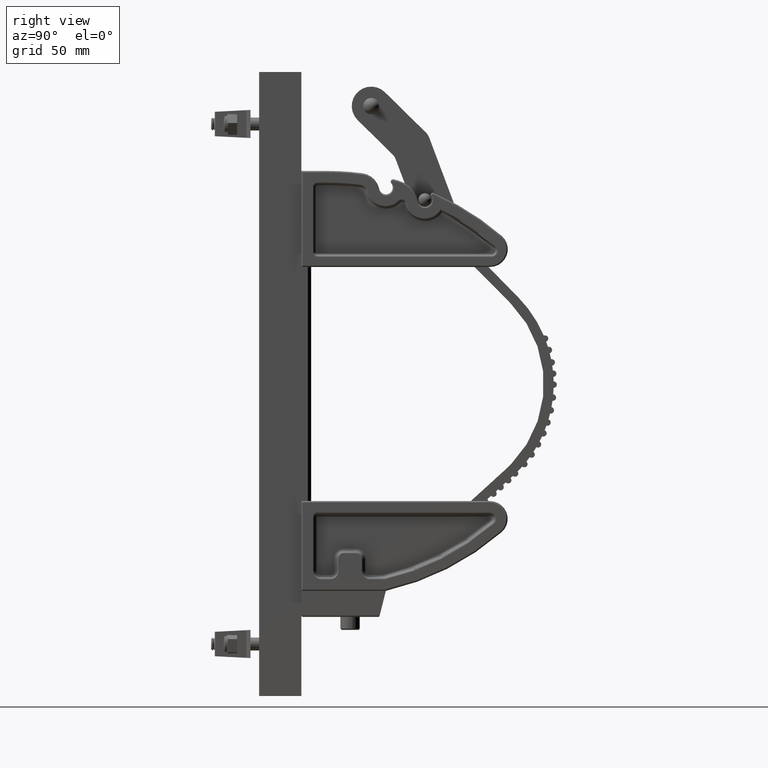
[diagram: clean part render]
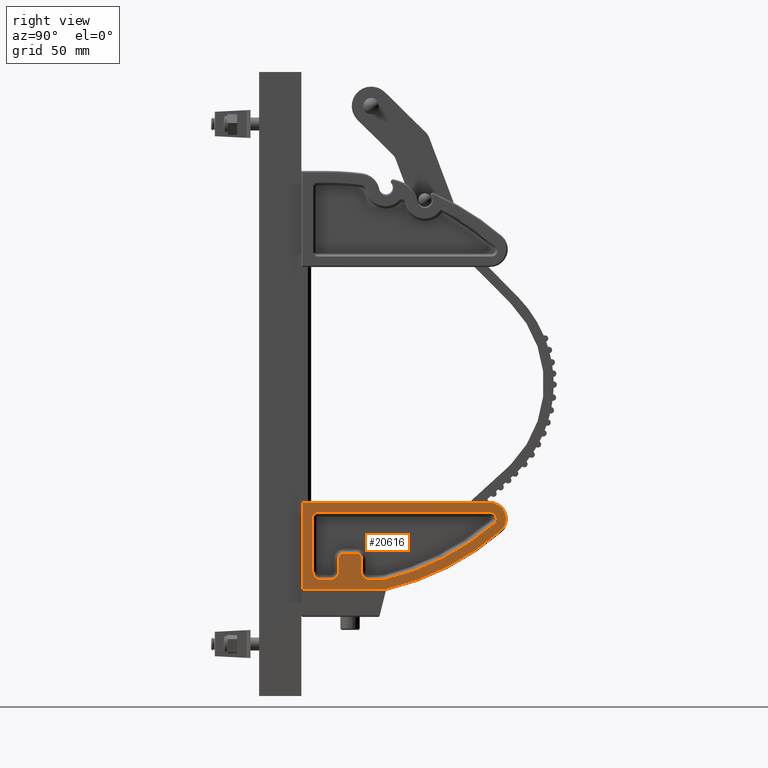
[diagram: same view with one face highlighted and labeled with its STEP entity id]
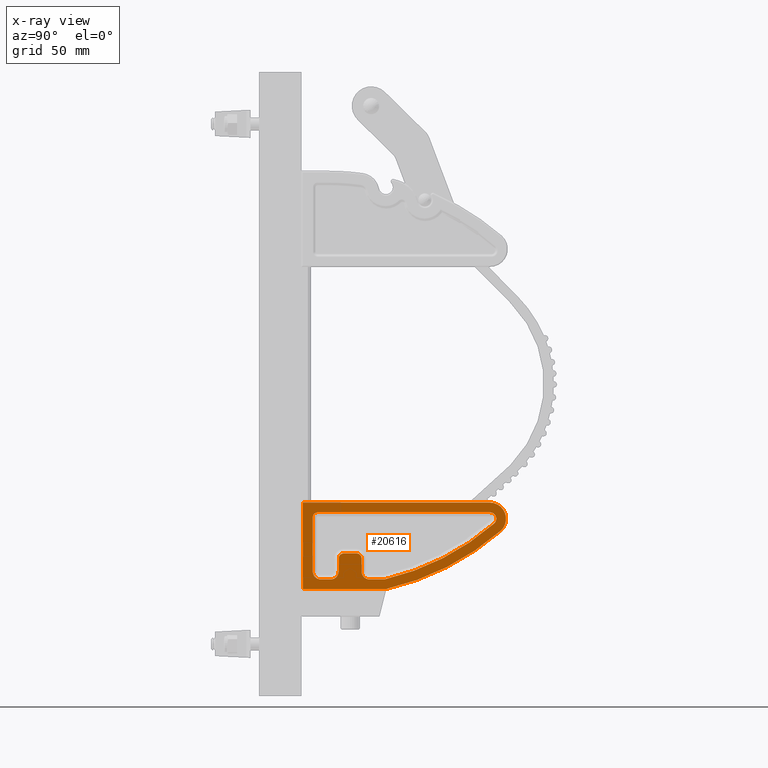
[diagram: x-ray of the same camera — body ghosted, the highlighted face saturated]
A machine part, right view. The second image highlights one B-rep face of the part: STEP entity #20616.
The next image is the same camera in x-ray: the body ghosted, the highlighted face saturated — about 0% of this face is hidden behind the body in this view.
In plain terms, the highlighted planar face has unit normal (-1, -0, -0).
Its self-contained STEP definition (entity closure, byte-faithful):
#386 = CIRCLE ( 'NONE', #13642, 0.09375000000000056900 ) ;
#466 = ORIENTED_EDGE ( 'NONE', *, *, #18978, .T. ) ;
#662 = LINE ( 'NONE', #34475, #7328 ) ;
#841 = ORIENTED_EDGE ( 'NONE', *, *, #21004, .T. ) ;
#1006 = ORIENTED_EDGE ( 'NONE', *, *, #28541, .T. ) ;
#1170 = DIRECTION ( 'NONE',  ( 1.000000000000000000, 5.558892818463635400E-016, 1.082467449009524100E-015 ) ) ;
#1256 = ORIENTED_EDGE ( 'NONE', *, *, #8213, .T. ) ;
#1379 = CARTESIAN_POINT ( 'NONE',  ( -1.353000000000002600, 0.5624999999999997800, -0.9375000000000017800 ) ) ;
#1691 = CARTESIAN_POINT ( 'NONE',  ( -1.509250000000002400, 0.3749999999999996700, -0.9375000000000017800 ) ) ;
#1766 = ORIENTED_EDGE ( 'NONE', *, *, #21804, .T. ) ;
#1973 = CIRCLE ( 'NONE', #22307, 0.1234500000000014200 ) ;
#2588 = CIRCLE ( 'NONE', #20150, 0.1562500000000008300 ) ;
#3262 = CIRCLE ( 'NONE', #28442, 0.1562500000000008300 ) ;
#3323 = DIRECTION ( 'NONE',  ( -5.558892818463669900E-016, -1.000000000000000000, 3.962698892778895900E-016 ) ) ;
#3510 = CARTESIAN_POINT ( 'NONE',  ( 3.250000000000014700, 0.5000000000000010000, -0.9374999999999982200 ) ) ;
#3532 = ORIENTED_EDGE ( 'NONE', *, *, #29001, .T. ) ;
#3639 = CARTESIAN_POINT ( 'NONE',  ( -0.3125000000000005600, 0.2187499999999990000, -0.9375000000000000000 ) ) ;
#3656 = DIRECTION ( 'NONE',  ( 3.877755591593341800E-016, 1.000000000000000000, -3.962698892778898900E-016 ) ) ;
#3761 = VECTOR ( 'NONE', #10415, 39.37007874015748100 ) ;
#4066 = FACE_BOUND ( 'NONE', #19161, .T. ) ;
#4220 = DIRECTION ( 'NONE',  ( 1.000000000000000000, 4.370956789862798000E-016, 8.741913579725596000E-016 ) ) ;
#4437 = EDGE_CURVE ( 'NONE', #19692, #28386, #20065, .T. ) ;
#5281 = VERTEX_POINT ( 'NONE', #24401 ) ;
#5531 = LINE ( 'NONE', #36047, #12193 ) ;
#5656 = EDGE_CURVE ( 'NONE', #5281, #17746, #31346, .T. ) ;
#6410 = DIRECTION ( 'NONE',  ( 1.000000000000000000, 5.520474612432901800E-016, 1.077165778035688300E-015 ) ) ;
#6486 = CIRCLE ( 'NONE', #35777, 0.09375000000000061100 ) ;
#6526 = DIRECTION ( 'NONE',  ( 1.000000000000000000, -2.645840463805250400E-016, 1.082467449009524300E-015 ) ) ;
#6914 = ORIENTED_EDGE ( 'NONE', *, *, #34420, .T. ) ;
#6954 = VERTEX_POINT ( 'NONE', #9108 ) ;
#7195 = EDGE_LOOP ( 'NONE', ( #1766, #6914, #15899, #12923, #1256 ) ) ;
#7295 = VERTEX_POINT ( 'NONE', #18900 ) ;
#7328 = VECTOR ( 'NONE', #17698, 39.37007874015748100 ) ;
#7527 = CARTESIAN_POINT ( 'NONE',  ( -0.03124999999999983700, 0.03124999999999888300, -0.9375000000000003300 ) ) ;
#7546 = VERTEX_POINT ( 'NONE', #20020 ) ;
#7578 = CARTESIAN_POINT ( 'NONE',  ( -1.353000000000002600, 0.7187499999999995600, -0.9375000000000017800 ) ) ;
#7833 = EDGE_CURVE ( 'NONE', #14534, #19692, #18509, .T. ) ;
#8120 = CARTESIAN_POINT ( 'NONE',  ( -1.509250000000002400, 0.5624999999999997800, -0.9375000000000017800 ) ) ;
#8144 = CARTESIAN_POINT ( 'NONE',  ( -0.2187499999999988600, 3.625131516786316100, -0.9375000000000017800 ) ) ;
#8213 = EDGE_CURVE ( 'NONE', #22534, #7295, #29407, .T. ) ;
#8315 = CARTESIAN_POINT ( 'NONE',  ( -1.009250000000000600, 0.8124999999999998900, -0.9375000000000017800 ) ) ;
#8649 = VERTEX_POINT ( 'NONE', #8120 ) ;
#8765 = CARTESIAN_POINT ( 'NONE',  ( -1.102999999999999800, 0.8124999999999998900, -0.9375000000000017800 ) ) ;
#8840 = AXIS2_PLACEMENT_3D ( 'NONE', #26578, #18232, #1170 ) ;
#9108 = CARTESIAN_POINT ( 'NONE',  ( -1.102999999999999800, 0.7187499999999997800, -0.9375000000000017800 ) ) ;
#9358 = CARTESIAN_POINT ( 'NONE',  ( -0.3421999999999999500, 3.625131516786316100, -0.9375000000000017800 ) ) ;
#9578 = DIRECTION ( 'NONE',  ( 1.366270711611484000E-015, -1.000000000000000000, 3.962698892778917100E-016 ) ) ;
#9683 = CARTESIAN_POINT ( 'NONE',  ( -0.3125000000000005600, 0.2187499999999990000, -0.9375000000000000000 ) ) ;
#9707 = VECTOR ( 'NONE', #19335, 39.37007874015748100 ) ;
#9758 = VERTEX_POINT ( 'NONE', #17565 ) ;
#9864 = VECTOR ( 'NONE', #3323, 39.37007874015748100 ) ;
#9931 = CARTESIAN_POINT ( 'NONE',  ( -1.102999999999999800, 1.156250000000000200, -0.9375000000000017800 ) ) ;
#10002 = EDGE_CURVE ( 'NONE', #29740, #12417, #5531, .T. ) ;
#10338 = DIRECTION ( 'NONE',  ( 1.082467449009530600E-015, -3.962698892778896400E-016, 1.000000000000000000 ) ) ;
#10415 = DIRECTION ( 'NONE',  ( -1.000000000000000000, -6.783499172286005700E-016, -1.082467449009523900E-015 ) ) ;
#10419 = VERTEX_POINT ( 'NONE', #16344 ) ;
#10739 = FACE_OUTER_BOUND ( 'NONE', #7195, .T. ) ;
#10752 = LINE ( 'NONE', #34307, #9864 ) ;
#11378 = AXIS2_PLACEMENT_3D ( 'NONE', #29827, #12997, #32656 ) ;
#11465 = LINE ( 'NONE', #31470, #32149 ) ;
#11489 = EDGE_CURVE ( 'NONE', #6954, #7546, #31312, .T. ) ;
#11568 = LINE ( 'NONE', #20696, #34020 ) ;
#11604 = DIRECTION ( 'NONE',  ( 1.000000000000000000, 0.0000000000000000000, 1.456985596620930900E-015 ) ) ;
#12185 = DIRECTION ( 'NONE',  ( 1.000000000000000000, 0.0000000000000000000, 8.785489608182168200E-016 ) ) ;
#12193 = VECTOR ( 'NONE', #13170, 39.37007874015748100 ) ;
#12404 = CARTESIAN_POINT ( 'NONE',  ( -0.4353370570517935400, 3.706158617831159000, -0.9375000000000017800 ) ) ;
#12417 = VERTEX_POINT ( 'NONE', #9931 ) ;
#12891 = CARTESIAN_POINT ( 'NONE',  ( -0.3125000000000000000, 0.3124999999999989500, -0.9375000000000000000 ) ) ;
#12923 = ORIENTED_EDGE ( 'NONE', *, *, #18025, .T. ) ;
#12997 = DIRECTION ( 'NONE',  ( 1.082467449009530600E-015, -3.962698892778896400E-016, 1.000000000000000000 ) ) ;
#13065 = CARTESIAN_POINT ( 'NONE',  ( -1.102999999999999800, 1.062500000000000200, -0.9375000000000017800 ) ) ;
#13170 = DIRECTION ( 'NONE',  ( 1.000000000000000000, 5.558892818463634400E-016, 1.082467449009523900E-015 ) ) ;
#13362 = VECTOR ( 'NONE', #9578, 39.37007874015748100 ) ;
#13558 = LINE ( 'NONE', #8144, #21111 ) ;
#13642 = AXIS2_PLACEMENT_3D ( 'NONE', #12891, #32553, #15754 ) ;
#13705 = EDGE_CURVE ( 'NONE', #20768, #21177, #18903, .T. ) ;
#13785 = DIRECTION ( 'NONE',  ( 1.082467449009530600E-015, -3.962698892778896400E-016, 1.000000000000000000 ) ) ;
#13994 = AXIS2_PLACEMENT_3D ( 'NONE', #3510, #23398, #6410 ) ;
#14534 = VERTEX_POINT ( 'NONE', #12404 ) ;
#15347 = PLANE ( 'NONE',  #8840 ) ;
#15547 = ORIENTED_EDGE ( 'NONE', *, *, #11489, .T. ) ;
#15722 = DIRECTION ( 'NONE',  ( 1.082467449009530600E-015, -3.962698892778896400E-016, 1.000000000000000000 ) ) ;
#15754 = DIRECTION ( 'NONE',  ( 1.000000000000000000, 7.284927983104657500E-016, 1.456985596620931500E-015 ) ) ;
#15899 = ORIENTED_EDGE ( 'NONE', *, *, #13705, .T. ) ;
#15937 = DIRECTION ( 'NONE',  ( 1.000000000000000000, 0.0000000000000000000, 1.456985596620930900E-015 ) ) ;
#16344 = CARTESIAN_POINT ( 'NONE',  ( -0.2187499999999988600, 3.625131516786316100, -0.9375000000000017800 ) ) ;
#17316 = VECTOR ( 'NONE', #6526, 39.37007874015748100 ) ;
#17329 = EDGE_CURVE ( 'NONE', #7546, #8649, #22723, .T. ) ;
#17565 = CARTESIAN_POINT ( 'NONE',  ( -1.009249999999999500, 1.062500000000000200, -0.9375000000000017800 ) ) ;
#17698 = DIRECTION ( 'NONE',  ( -5.558892818463669900E-016, -1.000000000000000000, 3.962698892778895900E-016 ) ) ;
#17746 = VERTEX_POINT ( 'NONE', #9683 ) ;
#18025 = EDGE_CURVE ( 'NONE', #21177, #22534, #11568, .T. ) ;
#18232 = DIRECTION ( 'NONE',  ( -1.082467449009523900E-015, -3.962698892778908300E-016, 1.000000000000000000 ) ) ;
#18509 = CIRCLE ( 'NONE', #11378, 4.884788870235074600 ) ;
#18900 = CARTESIAN_POINT ( 'NONE',  ( -0.5767967427319152800, 3.829225296210323900, -0.9375000000000035500 ) ) ;
#18903 = LINE ( 'NONE', #27328, #3761 ) ;
#18978 = EDGE_CURVE ( 'NONE', #28386, #29740, #3262, .T. ) ;
#19161 = EDGE_LOOP ( 'NONE', ( #26622, #25334, #466, #28991, #20791, #3532, #841, #15547, #19540, #30086, #30941, #28616, #1006, #20484, #33661 ) ) ;
#19335 = DIRECTION ( 'NONE',  ( -1.000000000000000000, -5.558892818463634400E-016, -1.082467449009523900E-015 ) ) ;
#19540 = ORIENTED_EDGE ( 'NONE', *, *, #17329, .T. ) ;
#19692 = VERTEX_POINT ( 'NONE', #32713 ) ;
#20020 = CARTESIAN_POINT ( 'NONE',  ( -1.353000000000002600, 0.7187499999999995600, -0.9375000000000017800 ) ) ;
#20065 = LINE ( 'NONE', #29293, #13362 ) ;
#20150 = AXIS2_PLACEMENT_3D ( 'NONE', #32520, #15722, #35376 ) ;
#20437 = CARTESIAN_POINT ( 'NONE',  ( -1.353000000000000600, 1.156250000000000000, -0.9375000000000017800 ) ) ;
#20484 = ORIENTED_EDGE ( 'NONE', *, *, #31857, .T. ) ;
#20616 = ADVANCED_FACE ( 'NONE', ( #4066, #10739 ), #15347, .F. ) ;
#20696 = CARTESIAN_POINT ( 'NONE',  ( -1.696750000000002600, 0.4999999999999996100, -0.9375000000000035500 ) ) ;
#20768 = VERTEX_POINT ( 'NONE', #7527 ) ;
#20791 = ORIENTED_EDGE ( 'NONE', *, *, #31577, .T. ) ;
#21004 = EDGE_CURVE ( 'NONE', #30463, #6954, #29247, .T. ) ;
#21111 = VECTOR ( 'NONE', #25111, 39.37007874015748100 ) ;
#21177 = VERTEX_POINT ( 'NONE', #32236 ) ;
#21253 = DIRECTION ( 'NONE',  ( 1.082467449009530600E-015, -3.962698892778896400E-016, 1.000000000000000000 ) ) ;
#21804 = EDGE_CURVE ( 'NONE', #7295, #24019, #30102, .T. ) ;
#21813 = CARTESIAN_POINT ( 'NONE',  ( -1.696750000000002600, 1.621507387675316100, -0.9375000000000035500 ) ) ;
#22307 = AXIS2_PLACEMENT_3D ( 'NONE', #27232, #10338, #30024 ) ;
#22534 = VERTEX_POINT ( 'NONE', #21813 ) ;
#22723 = CIRCLE ( 'NONE', #32115, 0.1562500000000008300 ) ;
#23398 = DIRECTION ( 'NONE',  ( -1.082467449009530600E-015, 3.962698892778896400E-016, -1.000000000000000000 ) ) ;
#23476 = VERTEX_POINT ( 'NONE', #29385 ) ;
#23909 = EDGE_CURVE ( 'NONE', #35280, #5281, #2588, .T. ) ;
#24019 = VERTEX_POINT ( 'NONE', #32889 ) ;
#24401 = CARTESIAN_POINT ( 'NONE',  ( -1.353000000000002600, 0.2187499999999998100, -0.9375000000000017800 ) ) ;
#25111 = DIRECTION ( 'NONE',  ( 9.476104227022025600E-016, 1.000000000000000000, -3.962698892778893500E-016 ) ) ;
#25334 = ORIENTED_EDGE ( 'NONE', *, *, #4437, .T. ) ;
#26112 = AXIS2_PLACEMENT_3D ( 'NONE', #9358, #29053, #12185 ) ;
#26578 = CARTESIAN_POINT ( 'NONE',  ( 3.250000000000014700, 0.5000000000000010000, -0.9374999999999982200 ) ) ;
#26622 = ORIENTED_EDGE ( 'NONE', *, *, #7833, .T. ) ;
#27232 = CARTESIAN_POINT ( 'NONE',  ( -0.3421999999999999500, 3.625131516786316100, -0.9375000000000017800 ) ) ;
#27328 = CARTESIAN_POINT ( 'NONE',  ( 3.250000000000014700, 0.03125000000000106900, -0.9374999999999964500 ) ) ;
#28386 = VERTEX_POINT ( 'NONE', #34434 ) ;
#28442 = AXIS2_PLACEMENT_3D ( 'NONE', #30624, #13785, #33433 ) ;
#28487 = DIRECTION ( 'NONE',  ( -1.082467449009530600E-015, 3.962698892778896400E-016, -1.000000000000000000 ) ) ;
#28541 = EDGE_CURVE ( 'NONE', #17746, #23476, #386, .T. ) ;
#28616 = ORIENTED_EDGE ( 'NONE', *, *, #5656, .T. ) ;
#28652 = DIRECTION ( 'NONE',  ( -5.558892818463669900E-016, -1.000000000000000000, 3.962698892778895900E-016 ) ) ;
#28991 = ORIENTED_EDGE ( 'NONE', *, *, #10002, .T. ) ;
#29001 = EDGE_CURVE ( 'NONE', #9758, #30463, #11465, .T. ) ;
#29053 = DIRECTION ( 'NONE',  ( -1.082467449009530600E-015, 3.962698892778896400E-016, -1.000000000000000000 ) ) ;
#29247 = CIRCLE ( 'NONE', #35732, 0.09375000000000061100 ) ;
#29293 = CARTESIAN_POINT ( 'NONE',  ( -1.509250000000000200, 1.312499999999997300, -0.9375000000000035500 ) ) ;
#29385 = CARTESIAN_POINT ( 'NONE',  ( -0.2187499999999999400, 0.3124999999999993300, -0.9375000000000000000 ) ) ;
#29407 = CIRCLE ( 'NONE', #13994, 5.072288870235074600 ) ;
#29740 = VERTEX_POINT ( 'NONE', #20437 ) ;
#29827 = CARTESIAN_POINT ( 'NONE',  ( 3.250000000000014700, 0.5000000000000010000, -0.9374999999999982200 ) ) ;
#30024 = DIRECTION ( 'NONE',  ( 1.000000000000000000, 0.0000000000000000000, 1.106459292695112100E-015 ) ) ;
#30086 = ORIENTED_EDGE ( 'NONE', *, *, #32060, .T. ) ;
#30102 = CIRCLE ( 'NONE', #26112, 0.3109500000000020600 ) ;
#30463 = VERTEX_POINT ( 'NONE', #8315 ) ;
#30624 = CARTESIAN_POINT ( 'NONE',  ( -1.353000000000000600, 1.312499999999997300, -0.9375000000000017800 ) ) ;
#30941 = ORIENTED_EDGE ( 'NONE', *, *, #23909, .T. ) ;
#31312 = LINE ( 'NONE', #7578, #9707 ) ;
#31346 = LINE ( 'NONE', #3639, #17316 ) ;
#31470 = CARTESIAN_POINT ( 'NONE',  ( -1.009250000000000600, 0.8124999999999998900, -0.9375000000000017800 ) ) ;
#31577 = EDGE_CURVE ( 'NONE', #12417, #9758, #6486, .T. ) ;
#31857 = EDGE_CURVE ( 'NONE', #23476, #10419, #13558, .T. ) ;
#32060 = EDGE_CURVE ( 'NONE', #8649, #35280, #662, .T. ) ;
#32115 = AXIS2_PLACEMENT_3D ( 'NONE', #1379, #21253, #4220 ) ;
#32149 = VECTOR ( 'NONE', #28652, 39.37007874015748100 ) ;
#32236 = CARTESIAN_POINT ( 'NONE',  ( -1.696750000000002600, 0.03124999999999874400, -0.9375000000000017800 ) ) ;
#32317 = EDGE_CURVE ( 'NONE', #10419, #14534, #1973, .T. ) ;
#32520 = CARTESIAN_POINT ( 'NONE',  ( -1.353000000000002600, 0.3749999999999996700, -0.9375000000000017800 ) ) ;
#32553 = DIRECTION ( 'NONE',  ( 1.082467449009530600E-015, -3.962698892778896400E-016, 1.000000000000000000 ) ) ;
#32656 = DIRECTION ( 'NONE',  ( 1.000000000000000000, 5.592561042526279000E-016, 1.090549403292624400E-015 ) ) ;
#32713 = CARTESIAN_POINT ( 'NONE',  ( -1.509250000000002400, 1.600318928434918200, -0.9375000000000035500 ) ) ;
#32733 = DIRECTION ( 'NONE',  ( -1.082467449009530600E-015, 3.962698892778896400E-016, -1.000000000000000000 ) ) ;
#32889 = CARTESIAN_POINT ( 'NONE',  ( -0.03124999999999983700, 3.625131516786316100, -0.9375000000000021100 ) ) ;
#33433 = DIRECTION ( 'NONE',  ( 1.000000000000000000, 0.0000000000000000000, 8.741913579725596000E-016 ) ) ;
#33661 = ORIENTED_EDGE ( 'NONE', *, *, #32317, .T. ) ;
#34020 = VECTOR ( 'NONE', #3656, 39.37007874015748100 ) ;
#34307 = CARTESIAN_POINT ( 'NONE',  ( -0.03124999999999983700, 0.5000000000000004400, -0.9375000000000003300 ) ) ;
#34420 = EDGE_CURVE ( 'NONE', #24019, #20768, #10752, .T. ) ;
#34434 = CARTESIAN_POINT ( 'NONE',  ( -1.509250000000000200, 1.312499999999997300, -0.9375000000000035500 ) ) ;
#34475 = CARTESIAN_POINT ( 'NONE',  ( -1.509250000000002400, 0.3749999999999996700, -0.9375000000000017800 ) ) ;
#35280 = VERTEX_POINT ( 'NONE', #1691 ) ;
#35376 = DIRECTION ( 'NONE',  ( 1.000000000000000000, 4.370956789862798000E-016, 8.741913579725596000E-016 ) ) ;
#35732 = AXIS2_PLACEMENT_3D ( 'NONE', #8765, #28487, #11604 ) ;
#35777 = AXIS2_PLACEMENT_3D ( 'NONE', #13065, #32733, #15937 ) ;
#36047 = CARTESIAN_POINT ( 'NONE',  ( -1.103000000000000900, 1.156250000000000200, -0.9375000000000017800 ) ) ;